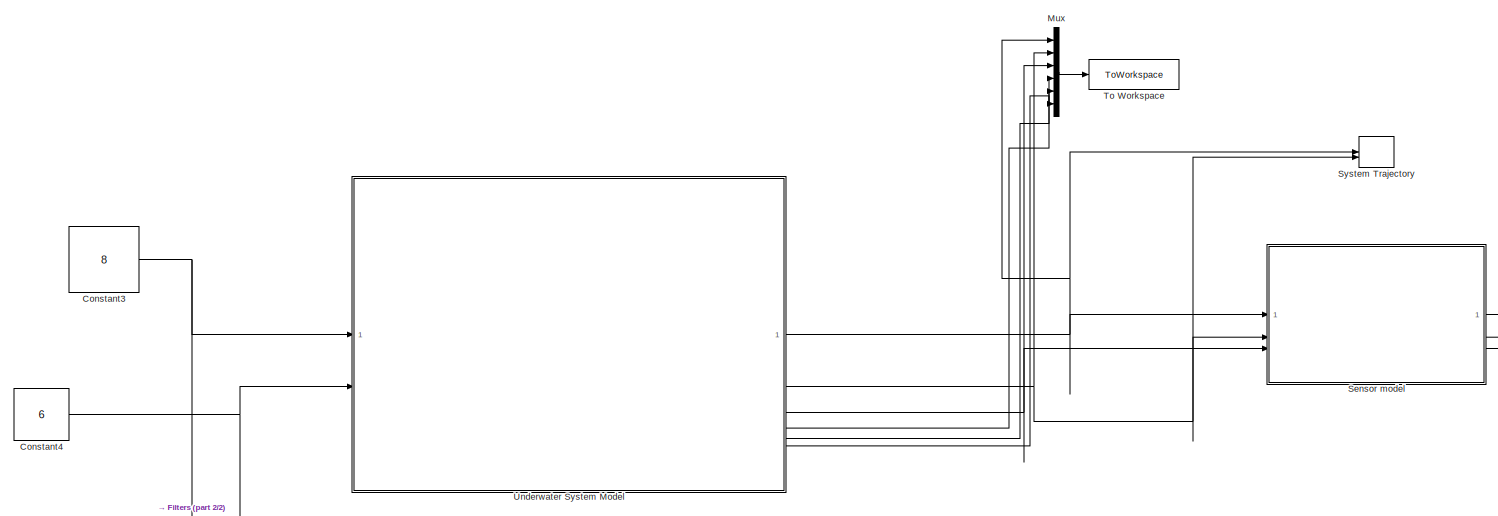
[diagram: root canvas - part 1/2, full width, top band]
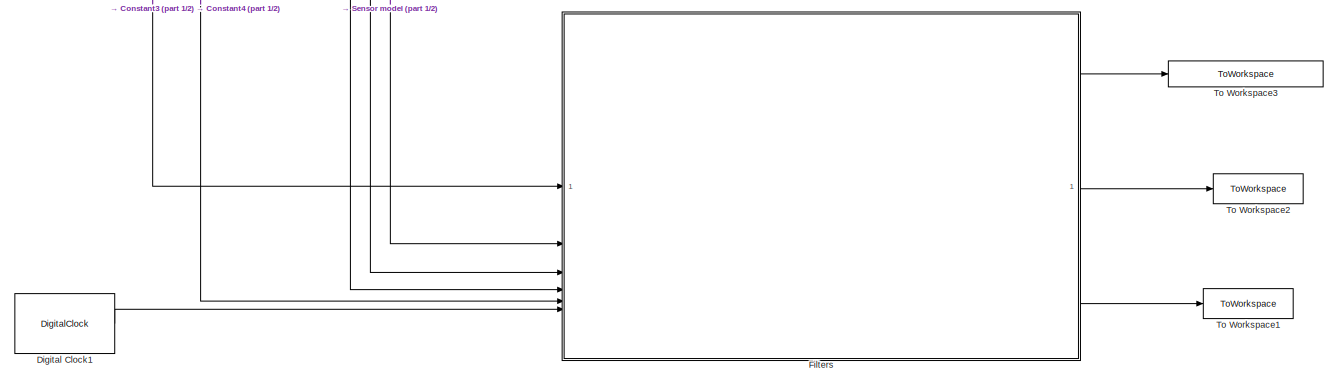
[diagram: root canvas - part 2/2, full width, bottom band]
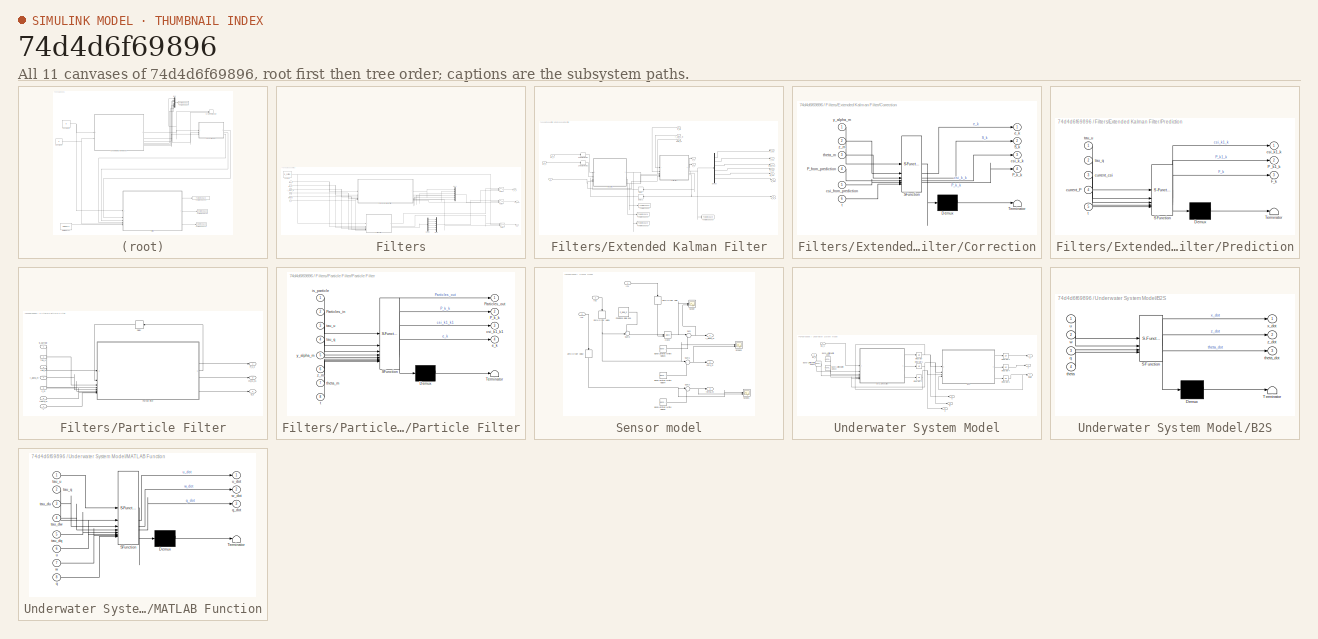
[diagram: thumbnail index - all 11 canvases of the model, root first then tree order]
MODEL slx_74d4d6f69896
KIND model
CONFIG AbsTol = auto
CONFIG EnableMultiTasking = off
CONFIG FixedStep = auto
CONFIG MaxStep = auto
CONFIG MinStep = auto
CONFIG RelTol = 1e-3
CONFIG SampleTimeConstraint = Unconstrained
CONFIG SolverName = VariableStepAuto
CONFIG StartTime = 0.0
CONFIG StopTime = 60
BLOCK [Constant] Constant3
  Value = 8
BLOCK [Constant] Constant4
  Value = 6
BLOCK [DigitalClock] Digital Clock1
  SampleTime = 0.1
BLOCK [SubSystem] Filters
BLOCK [Constant] Filters/Constant
  Value = is_particle
BLOCK [Demux] Filters/Demux
  Outputs = 6
BLOCK [SubSystem] Filters/Extended Kalman Filter
BLOCK [SubSystem] Filters/Extended Kalman Filter/Correction
  ErrorFcn = Stateflow.Translate.translate
  LibrarySourceBlock = simulink/User-Defined\nFunctions/MATLAB Function
  PermitHierarchicalResolution = ExplicitOnly
  SFBlockType = MATLAB Function
  TreatAsAtomicUnit = on
BLOCK [Demux] Filters/Extended Kalman Filter/Correction/ Demux 
  Outputs = 1
BLOCK [S-Function] Filters/Extended Kalman Filter/Correction/ SFunction 
  EnableBusSupport = on
  FunctionName = sf_sfun
  Parameters = R,z_boa_2
  PortCounts = [6 5]
  SFcnIsStateOwnerBlock = off
  SFunctionDeploymentMode = off
  Tag = Stateflow S-Function 4
BLOCK [Terminator] Filters/Extended Kalman Filter/Correction/ Terminator 
BLOCK [Inport] Filters/Extended Kalman Filter/Correction/P_from_prediction
  Port = 4
BLOCK [Outport] Filters/Extended Kalman Filter/Correction/P_k_k
  Port = 4
BLOCK [Outport] Filters/Extended Kalman Filter/Correction/S_k
  Port = 2
BLOCK [Inport] Filters/Extended Kalman Filter/Correction/csi_from_prediction
  Port = 5
BLOCK [Outport] Filters/Extended Kalman Filter/Correction/csi_k_k
  Port = 3
BLOCK [Outport] Filters/Extended Kalman Filter/Correction/e_k
BLOCK [Inport] Filters/Extended Kalman Filter/Correction/t
  Port = 6
BLOCK [Inport] Filters/Extended Kalman Filter/Correction/theta_m
  Port = 3
BLOCK [Inport] Filters/Extended Kalman Filter/Correction/y_alpha_m
BLOCK [Inport] Filters/Extended Kalman Filter/Correction/z_m
  Port = 2
BLOCK [Delay] Filters/Extended Kalman Filter/Delay
  DelayLength = 1
  InitialCondition = 0
  InputPortMap = u0
  SampleTime = dt
BLOCK [Delay] Filters/Extended Kalman Filter/Delay1
  DelayLength = 1
  InitialCondition = 0
  InputPortMap = u0
  SampleTime = dt
BLOCK [Demux] Filters/Extended Kalman Filter/Demux
  Outputs = 6
BLOCK [Outport] Filters/Extended Kalman Filter/P_k_k
  Port = 9
BLOCK [SubSystem] Filters/Extended Kalman Filter/Prediction
  ErrorFcn = Stateflow.Translate.translate
  LibrarySourceBlock = simulink/User-Defined\nFunctions/MATLAB Function
  PermitHierarchicalResolution = ExplicitOnly
  SFBlockType = MATLAB Function
  TreatAsAtomicUnit = on
BLOCK [Demux] Filters/Extended Kalman Filter/Prediction/ Demux 
  Outputs = 1
BLOCK [S-Function] Filters/Extended Kalman Filter/Prediction/ SFunction 
  EnableBusSupport = on
  FunctionName = sf_sfun
  Parameters = P_00,Q,S,csi_0,dt
  PortCounts = [5 4]
  SFcnIsStateOwnerBlock = off
  SFunctionDeploymentMode = off
  Tag = Stateflow S-Function 3
BLOCK [Terminator] Filters/Extended Kalman Filter/Prediction/ Terminator 
BLOCK [Outport] Filters/Extended Kalman Filter/Prediction/F_k
  Port = 3
BLOCK [Outport] Filters/Extended Kalman Filter/Prediction/P_k1_k
  Port = 2
BLOCK [Outport] Filters/Extended Kalman Filter/Prediction/csi_k1_k
BLOCK [Inport] Filters/Extended Kalman Filter/Prediction/current_P
  Port = 4
BLOCK [Inport] Filters/Extended Kalman Filter/Prediction/current_csi
  Port = 3
BLOCK [Inport] Filters/Extended Kalman Filter/Prediction/t
  Port = 5
BLOCK [Inport] Filters/Extended Kalman Filter/Prediction/tau_q
  Port = 2
BLOCK [Inport] Filters/Extended Kalman Filter/Prediction/tau_u
BLOCK [Outport] Filters/Extended Kalman Filter/S_k
  Port = 8
BLOCK [ToWorkspace] Filters/Extended Kalman Filter/To Workspace
  FixptAsFi = on
  MaxDataPoints = inf
  SampleTime = dt
  VariableName = P_k1_k
BLOCK [ToWorkspace] Filters/Extended Kalman Filter/To Workspace1
  FixptAsFi = on
  MaxDataPoints = inf
  SampleTime = dt
  VariableName = F_k
BLOCK [ToWorkspace] Filters/Extended Kalman Filter/To Workspace2
  FixptAsFi = on
  MaxDataPoints = inf
  SampleTime = dt
  VariableName = csi_k1_k
BLOCK [ToWorkspace] Filters/Extended Kalman Filter/To Workspace3
  FixptAsFi = on
  MaxDataPoints = inf
  SampleTime = dt
  VariableName = csi_k_k
BLOCK [ZeroOrderHold] Filters/Extended Kalman Filter/Zero-Order Hold1
  SampleTime = dt
BLOCK [ZeroOrderHold] Filters/Extended Kalman Filter/Zero-Order Hold2
  SampleTime = dt
BLOCK [Outport] Filters/Extended Kalman Filter/e_k
  Port = 7
BLOCK [Outport] Filters/Extended Kalman Filter/q_hat
  Port = 6
BLOCK [Inport] Filters/Extended Kalman Filter/t
  Port = 6
BLOCK [Inport] Filters/Extended Kalman Filter/tau_q
  Port = 2
BLOCK [Inport] Filters/Extended Kalman Filter/tau_u
BLOCK [Outport] Filters/Extended Kalman Filter/theta_hat
  Port = 3
BLOCK [Inport] Filters/Extended Kalman Filter/theta_m
  NameLocation = top
  Port = 5
BLOCK [Outport] Filters/Extended Kalman Filter/u_hat
  Port = 4
BLOCK [Outport] Filters/Extended Kalman Filter/w_hat
  Port = 5
BLOCK [Outport] Filters/Extended Kalman Filter/x_hat
BLOCK [Inport] Filters/Extended Kalman Filter/y_alpha_m
  NameLocation = top
  Port = 3
BLOCK [Outport] Filters/Extended Kalman Filter/z_hat
  Port = 2
BLOCK [Inport] Filters/Extended Kalman Filter/z_m
  Port = 4
BLOCK [Mux] Filters/Mux1
  DisplayOption = bar
  Inputs = 6
BLOCK [Mux] Filters/Mux2
  DisplayOption = bar
  Inputs = 6
BLOCK [Outport] Filters/P_k_k
  Port = 3
BLOCK [SubSystem] Filters/Particle Filter
BLOCK [Delay] Filters/Particle Filter/Delay
  DelayLength = 1
  InitialCondition = 0
  InputPortMap = u0
  NameLocation = top
  SampleTime = dt
BLOCK [Outport] Filters/Particle Filter/P_k_k
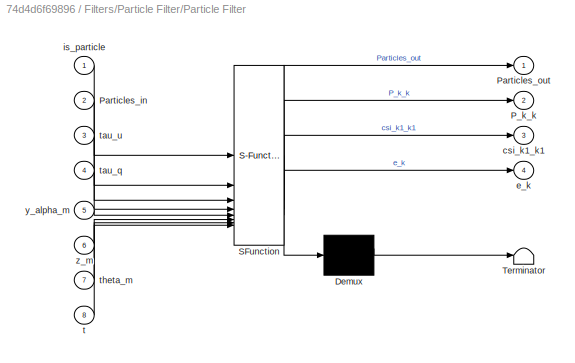
BLOCK [SubSystem] Filters/Particle Filter/Particle Filter
  ErrorFcn = Stateflow.Translate.translate
  LibrarySourceBlock = simulink/User-Defined\nFunctions/MATLAB Function
  PermitHierarchicalResolution = ExplicitOnly
  SFBlockType = MATLAB Function
  TreatAsAtomicUnit = on
BLOCK [Demux] Filters/Particle Filter/Particle Filter/ Demux 
  Outputs = 1
BLOCK [S-Function] Filters/Particle Filter/Particle Filter/ SFunction 
  EnableBusSupport = on
  FunctionName = sf_sfun
  Parameters = Q,R,S,csi_0,dt,z_boa_2
  PortCounts = [8 5]
  SFcnIsStateOwnerBlock = off
  SFunctionDeploymentMode = off
  Tag = Stateflow S-Function 5
BLOCK [Terminator] Filters/Particle Filter/Particle Filter/ Terminator 
BLOCK [Outport] Filters/Particle Filter/Particle Filter/P_k_k
  Port = 2
BLOCK [Inport] Filters/Particle Filter/Particle Filter/Particles_in
  Port = 2
BLOCK [Outport] Filters/Particle Filter/Particle Filter/Particles_out
BLOCK [Outport] Filters/Particle Filter/Particle Filter/csi_k1_k1
  Port = 3
BLOCK [Outport] Filters/Particle Filter/Particle Filter/e_k
  Port = 4
BLOCK [Inport] Filters/Particle Filter/Particle Filter/is_particle
BLOCK [Inport] Filters/Particle Filter/Particle Filter/t
  Port = 8
BLOCK [Inport] Filters/Particle Filter/Particle Filter/tau_q
  Port = 4
BLOCK [Inport] Filters/Particle Filter/Particle Filter/tau_u
  Port = 3
BLOCK [Inport] Filters/Particle Filter/Particle Filter/theta_m
  Port = 7
BLOCK [Inport] Filters/Particle Filter/Particle Filter/y_alpha_m
  Port = 5
BLOCK [Inport] Filters/Particle Filter/Particle Filter/z_m
  Port = 6
BLOCK [Outport] Filters/Particle Filter/csi_k1_k1
  Port = 3
BLOCK [Outport] Filters/Particle Filter/e_k
  Port = 2
BLOCK [Inport] Filters/Particle Filter/is_particle
BLOCK [Inport] Filters/Particle Filter/t
  Port = 7
BLOCK [Inport] Filters/Particle Filter/tau_q
  Port = 3
BLOCK [Inport] Filters/Particle Filter/tau_u
  Port = 2
BLOCK [Inport] Filters/Particle Filter/theta_m
  Port = 6
BLOCK [Inport] Filters/Particle Filter/y_alpha_m
  Port = 4
BLOCK [Inport] Filters/Particle Filter/z_m
  Port = 5
BLOCK [Switch] Filters/Switch
  Criteria = u2 > Threshold
  InputSameDT = off
  SaturateOnIntegerOverflow = off
BLOCK [Switch] Filters/Switch1
  Criteria = u2 > Threshold
  InputSameDT = off
  SaturateOnIntegerOverflow = off
BLOCK [Switch] Filters/Switch2
  Criteria = u2 > Threshold
  InputSameDT = off
  SaturateOnIntegerOverflow = off
BLOCK [Outport] Filters/csi_hat
BLOCK [Outport] Filters/e_k
  Port = 2
BLOCK [Inport] Filters/t
  Port = 6
BLOCK [Inport] Filters/tau_q
  Port = 5
BLOCK [Inport] Filters/tau_u
BLOCK [Inport] Filters/theta_m
  Port = 4
BLOCK [Inport] Filters/y_alpha_m
  Port = 2
BLOCK [Inport] Filters/z_m
  Port = 3
BLOCK [Mux] Mux
  DisplayOption = bar
  Inputs = 6
BLOCK [SubSystem] Sensor model
BLOCK [Trigonometry] Sensor model/Atan2
  Operator = atan2
BLOCK [Reference] Sensor model/Band-Limited White Noise3  REF=simulink/Sources/Band-Limited
White Noise
  SourceBlock = simulink/Sources/Band-Limited\nWhite Noise
  SourceType = Band-Limited White Noise.
BLOCK [Reference] Sensor model/Band-Limited White Noise4  REF=simulink/Sources/Band-Limited
White Noise
  SourceBlock = simulink/Sources/Band-Limited\nWhite Noise
  SourceType = Band-Limited White Noise.
BLOCK [Reference] Sensor model/Band-Limited White Noise5  REF=simulink/Sources/Band-Limited
White Noise
  SourceBlock = simulink/Sources/Band-Limited\nWhite Noise
  SourceType = Band-Limited White Noise.
BLOCK [Inport] Sensor model/In1
BLOCK [Inport] Sensor model/In2
  Port = 2
BLOCK [Inport] Sensor model/In3
  Port = 3
BLOCK [Constant] Sensor model/Posizione della boa
  Value = z_boa_2
BLOCK [Scope] Sensor model/Scope
  Floating = off
  NumInputPorts = 2
  ScopeSpecificationString = Simulink.scopes.TimeScopeBlockCfg('CurrentConfiguration', extmgr.ConfigurationSet(extmgr.Configuration('Core','General UI',true),extmgr.Configuration('Core','Source UI',true),extmgr.Configuration('Sources','WiredSimulink',true),extmgr.Configuration('Visuals','Time Domain',true,'SerializedDisplays',{struct('MinYLimReal','-0.14385','MaxYLimReal','0.15456','YLabelReal','','MinYLimMag','0.00000','MaxY...<+1388ch>
BLOCK [Scope] Sensor model/Scope1
  Floating = off
  NumInputPorts = 2
  ScopeSpecificationString = Simulink.scopes.TimeScopeBlockCfg('CurrentConfiguration', extmgr.ConfigurationSet(extmgr.Configuration('Core','General UI',true),extmgr.Configuration('Core','Source UI',true),extmgr.Configuration('Sources','WiredSimulink',true,'DataLoggingVariableName','ScopeData1'),extmgr.Configuration('Visuals','Time Domain',true,'SerializedDisplays',{struct('MinYLimReal','-6.48792','MaxYLimReal','2.94835','YLab...<+1415ch>
BLOCK [Scope] Sensor model/Scope3
  Floating = off
  NumInputPorts = 2
  ScopeSpecificationString = Simulink.scopes.TimeScopeBlockCfg('CurrentConfiguration', extmgr.ConfigurationSet(extmgr.Configuration('Core','General UI',true),extmgr.Configuration('Core','Source UI',true),extmgr.Configuration('Sources','WiredSimulink',true,'DataLoggingVariableName','ScopeData3'),extmgr.Configuration('Visuals','Time Domain',true,'SerializedDisplays',{struct('MinYLimReal','-50.79774','MaxYLimReal','7.54544','YLa...<+1434ch>
BLOCK [Sum] Sensor model/Sum
  Inputs = |++
BLOCK [Sum] Sensor model/Sum1
  Inputs = |++
BLOCK [Sum] Sensor model/Sum2
  Inputs = |++
BLOCK [Sum] Sensor model/Sum3
  Inputs = +-|
BLOCK [ZeroOrderHold] Sensor model/Zero-Order Hold
  NameLocation = left
  SampleTime = dt
BLOCK [ZeroOrderHold] Sensor model/Zero-Order Hold1
  NameLocation = left
  SampleTime = dt
BLOCK [ZeroOrderHold] Sensor model/Zero-Order Hold2
  NameLocation = left
  SampleTime = dt
BLOCK [Outport] Sensor model/tetha_m
  Port = 3
BLOCK [Outport] Sensor model/y_alpha_m
BLOCK [Outport] Sensor model/zeta_m
  Port = 2
BLOCK [Record] System Trajectory
  CompatibilityTag = XY
  FileSettingsInternal = {"entries":[{"content":{"excelSettings":{"content":{},"type":"Streamout.ExcelSettings"}},"type":"Streamout.FileSettingStorage","uuid":"5a9cd2f8-3f1b-4377-9d18-0cf4235dc122"}],"packageUris":["http://schema.mathworks.com/mf0/streamout_blocks/R2020a"],"version":"1.0"}
  Layout = [1 1]
  SignalsInternal = {"entries":[{"content":{"signals":[{"content":{"blockPath":["BodyDynamics/System Trajectory"],"channel":[],"dimensions":[1],"domain":"BodyDynamics/System Trajectory","lineColor":"#ff6929","plots":[],"port":1,"sid":[""],"signalID":475,"signalName":"Underwater System Model:1"},"type":"RecordBlkView.Signal","uuid":"2e985c3f-a8fe-4c9c-bedf-405b71b3ce1e"},{"content":{"blockPath":["BodyDynamics/System T...<+447ch>
  VisualizationBindings = {"xyplotplugin":{"info":[{"series":[],"subplotID":1}]}}
BLOCK [ToWorkspace] To Workspace
  FixptAsFi = on
  MaxDataPoints = inf
  SampleTime = dt
  VariableName = system_states
BLOCK [ToWorkspace] To Workspace1
  FixptAsFi = on
  MaxDataPoints = inf
  SampleTime = dt
  VariableName = P_k_k
BLOCK [ToWorkspace] To Workspace2
  FixptAsFi = on
  MaxDataPoints = inf
  SampleTime = dt
  VariableName = e_k
BLOCK [ToWorkspace] To Workspace3
  FixptAsFi = on
  MaxDataPoints = inf
  SampleTime = dt
  VariableName = esteemated_system_states
BLOCK [SubSystem] Underwater System Model
BLOCK [SubSystem] Underwater System Model/B2S
  ErrorFcn = Stateflow.Translate.translate
  PermitHierarchicalResolution = ExplicitOnly
  SFBlockType = MATLAB Function
  TreatAsAtomicUnit = on
BLOCK [Demux] Underwater System Model/B2S/ Demux 
  Outputs = 1
BLOCK [S-Function] Underwater System Model/B2S/ SFunction 
  EnableBusSupport = on
  FunctionName = sf_sfun
  PortCounts = [4 4]
  SFcnIsStateOwnerBlock = off
  SFunctionDeploymentMode = off
  Tag = Stateflow S-Function 1
BLOCK [Terminator] Underwater System Model/B2S/ Terminator 
BLOCK [Inport] Underwater System Model/B2S/q
  Port = 3
BLOCK [Inport] Underwater System Model/B2S/theta
  Port = 4
BLOCK [Outport] Underwater System Model/B2S/theta_dot
  Port = 3
BLOCK [Inport] Underwater System Model/B2S/u
BLOCK [Inport] Underwater System Model/B2S/w
  Port = 2
BLOCK [Outport] Underwater System Model/B2S/x_dot
BLOCK [Outport] Underwater System Model/B2S/z_dot
  Port = 2
BLOCK [Reference] Underwater System Model/Band-Limited White Noise  REF=simulink/Sources/Band-Limited
White Noise
  SourceBlock = simulink/Sources/Band-Limited\nWhite Noise
  SourceType = Band-Limited White Noise.
BLOCK [Reference] Underwater System Model/Band-Limited White Noise1  REF=simulink/Sources/Band-Limited
White Noise
  SourceBlock = simulink/Sources/Band-Limited\nWhite Noise
  SourceType = Band-Limited White Noise.
BLOCK [Reference] Underwater System Model/Band-Limited White Noise2  REF=simulink/Sources/Band-Limited
White Noise
  SourceBlock = simulink/Sources/Band-Limited\nWhite Noise
  SourceType = Band-Limited White Noise.
BLOCK [Integrator] Underwater System Model/Integrator
  InitialCondition = u_0
BLOCK [Integrator] Underwater System Model/Integrator1
  InitialCondition = w_0
BLOCK [Integrator] Underwater System Model/Integrator2
  InitialCondition = q_0
BLOCK [Integrator] Underwater System Model/Integrator3
  InitialCondition = x_0
BLOCK [Integrator] Underwater System Model/Integrator4
  InitialCondition = z_0
BLOCK [Integrator] Underwater System Model/Integrator5
  InitialCondition = theta_0
  WrappedStateLowerValue = 0
  WrappedStateUpperValue = 2*pi
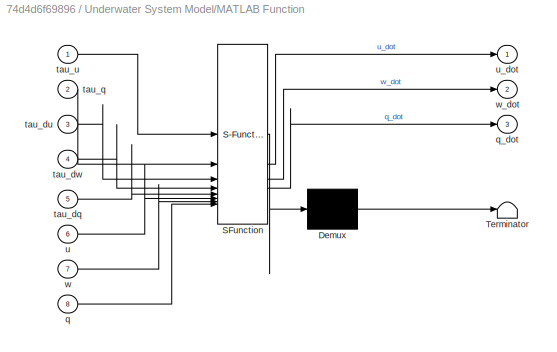
BLOCK [SubSystem] Underwater System Model/MATLAB Function
  ErrorFcn = Stateflow.Translate.translate
  PermitHierarchicalResolution = ExplicitOnly
  SFBlockType = MATLAB Function
  TreatAsAtomicUnit = on
BLOCK [Demux] Underwater System Model/MATLAB Function/ Demux 
  Outputs = 1
BLOCK [S-Function] Underwater System Model/MATLAB Function/ SFunction 
  EnableBusSupport = on
  FunctionName = sf_sfun
  Parameters = S
  PortCounts = [8 4]
  SFcnIsStateOwnerBlock = off
  SFunctionDeploymentMode = off
  Tag = Stateflow S-Function 2
BLOCK [Terminator] Underwater System Model/MATLAB Function/ Terminator 
BLOCK [Inport] Underwater System Model/MATLAB Function/q
  Port = 8
BLOCK [Outport] Underwater System Model/MATLAB Function/q_dot
  Port = 3
BLOCK [Inport] Underwater System Model/MATLAB Function/tau_dq
  Port = 5
BLOCK [Inport] Underwater System Model/MATLAB Function/tau_du
  Port = 3
BLOCK [Inport] Underwater System Model/MATLAB Function/tau_dw
  Port = 4
BLOCK [Inport] Underwater System Model/MATLAB Function/tau_q
  Port = 2
BLOCK [Inport] Underwater System Model/MATLAB Function/tau_u
BLOCK [Inport] Underwater System Model/MATLAB Function/u
  Port = 6
BLOCK [Outport] Underwater System Model/MATLAB Function/u_dot
BLOCK [Inport] Underwater System Model/MATLAB Function/w
  Port = 7
BLOCK [Outport] Underwater System Model/MATLAB Function/w_dot
  Port = 2
BLOCK [Outport] Underwater System Model/q
  Port = 6
BLOCK [Inport] Underwater System Model/tau_q
  Port = 2
BLOCK [Inport] Underwater System Model/tau_u
BLOCK [Outport] Underwater System Model/theta
  Port = 3
BLOCK [Outport] Underwater System Model/u
  Port = 4
BLOCK [Outport] Underwater System Model/w
  Port = 5
BLOCK [Outport] Underwater System Model/x
BLOCK [Outport] Underwater System Model/z
  Port = 2
NET Constant3:1 -> Filters:1, Underwater System Model:1
NET Constant4:1 -> Filters:5, Underwater System Model:2
LINE Digital Clock1:1 -> Filters:6
NET Filters/Constant:1 -> Filters/Particle Filter:1, Filters/Switch1:2, Filters/Switch2:2, Filters/Switch:2
LINE Filters/Demux:1 -> Filters/Mux2:1
LINE Filters/Demux:2 -> Filters/Mux2:2
LINE Filters/Demux:3 -> Filters/Mux2:3
LINE Filters/Demux:4 -> Filters/Mux2:4
LINE Filters/Demux:5 -> Filters/Mux2:5
LINE Filters/Demux:6 -> Filters/Mux2:6
LINE Filters/Extended Kalman Filter/Correction:1 -> Filters/Extended Kalman Filter/e_k:1
LINE Filters/Extended Kalman Filter/Correction:2 -> Filters/Extended Kalman Filter/S_k:1
NET Filters/Extended Kalman Filter/Correction:3 -> Filters/Extended Kalman Filter/Delay:1, Filters/Extended Kalman Filter/Demux:1, Filters/Extended Kalman Filter/To Workspace3:1
NET Filters/Extended Kalman Filter/Correction:4 -> Filters/Extended Kalman Filter/Delay1:1, Filters/Extended Kalman Filter/P_k_k:1
LINE Filters/Extended Kalman Filter/Delay1:1 -> Filters/Extended Kalman Filter/Prediction:4
LINE Filters/Extended Kalman Filter/Delay:1 -> Filters/Extended Kalman Filter/Prediction:3
LINE Filters/Extended Kalman Filter/Demux:1 -> Filters/Extended Kalman Filter/x_hat:1
LINE Filters/Extended Kalman Filter/Demux:2 -> Filters/Extended Kalman Filter/z_hat:1
LINE Filters/Extended Kalman Filter/Demux:3 -> Filters/Extended Kalman Filter/theta_hat:1
LINE Filters/Extended Kalman Filter/Demux:4 -> Filters/Extended Kalman Filter/u_hat:1
LINE Filters/Extended Kalman Filter/Demux:5 -> Filters/Extended Kalman Filter/w_hat:1
LINE Filters/Extended Kalman Filter/Demux:6 -> Filters/Extended Kalman Filter/q_hat:1
NET Filters/Extended Kalman Filter/Prediction:1 -> Filters/Extended Kalman Filter/Correction:5, Filters/Extended Kalman Filter/To Workspace2:1
NET Filters/Extended Kalman Filter/Prediction:2 -> Filters/Extended Kalman Filter/Correction:4, Filters/Extended Kalman Filter/To Workspace:1
LINE Filters/Extended Kalman Filter/Prediction:3 -> Filters/Extended Kalman Filter/To Workspace1:1
LINE Filters/Extended Kalman Filter/Zero-Order Hold1:1 -> Filters/Extended Kalman Filter/Prediction:1
LINE Filters/Extended Kalman Filter/Zero-Order Hold2:1 -> Filters/Extended Kalman Filter/Prediction:2
NET Filters/Extended Kalman Filter/t:1 -> Filters/Extended Kalman Filter/Correction:6, Filters/Extended Kalman Filter/Prediction:5
LINE Filters/Extended Kalman Filter/tau_q:1 -> Filters/Extended Kalman Filter/Zero-Order Hold2:1
LINE Filters/Extended Kalman Filter/tau_u:1 -> Filters/Extended Kalman Filter/Zero-Order Hold1:1
LINE Filters/Extended Kalman Filter/theta_m:1 -> Filters/Extended Kalman Filter/Correction:3
LINE Filters/Extended Kalman Filter/y_alpha_m:1 -> Filters/Extended Kalman Filter/Correction:1
LINE Filters/Extended Kalman Filter/z_m:1 -> Filters/Extended Kalman Filter/Correction:2
LINE Filters/Extended Kalman Filter:1 -> Filters/Mux1:1
LINE Filters/Extended Kalman Filter:2 -> Filters/Mux1:2
LINE Filters/Extended Kalman Filter:3 -> Filters/Mux1:3
LINE Filters/Extended Kalman Filter:4 -> Filters/Mux1:4
LINE Filters/Extended Kalman Filter:5 -> Filters/Mux1:5
LINE Filters/Extended Kalman Filter:6 -> Filters/Mux1:6
LINE Filters/Extended Kalman Filter:7 -> Filters/Switch1:3
LINE Filters/Extended Kalman Filter:9 -> Filters/Switch2:3
LINE Filters/Mux1:1 -> Filters/Switch:3
LINE Filters/Mux2:1 -> Filters/Switch:1
LINE Filters/Particle Filter/Delay:1 -> Filters/Particle Filter/Particle Filter:2
LINE Filters/Particle Filter/Particle Filter:1 -> Filters/Particle Filter/Delay:1
LINE Filters/Particle Filter/Particle Filter:2 -> Filters/Particle Filter/P_k_k:1
LINE Filters/Particle Filter/Particle Filter:3 -> Filters/Particle Filter/csi_k1_k1:1
LINE Filters/Particle Filter/Particle Filter:4 -> Filters/Particle Filter/e_k:1
LINE Filters/Particle Filter/is_particle:1 -> Filters/Particle Filter/Particle Filter:1
LINE Filters/Particle Filter/t:1 -> Filters/Particle Filter/Particle Filter:8
LINE Filters/Particle Filter/tau_q:1 -> Filters/Particle Filter/Particle Filter:4
LINE Filters/Particle Filter/tau_u:1 -> Filters/Particle Filter/Particle Filter:3
LINE Filters/Particle Filter/theta_m:1 -> Filters/Particle Filter/Particle Filter:7
LINE Filters/Particle Filter/y_alpha_m:1 -> Filters/Particle Filter/Particle Filter:5
LINE Filters/Particle Filter/z_m:1 -> Filters/Particle Filter/Particle Filter:6
LINE Filters/Particle Filter:1 -> Filters/Switch2:1
LINE Filters/Particle Filter:2 -> Filters/Switch1:1
LINE Filters/Particle Filter:3 -> Filters/Demux:1
LINE Filters/Switch1:1 -> Filters/e_k:1
LINE Filters/Switch2:1 -> Filters/P_k_k:1
LINE Filters/Switch:1 -> Filters/csi_hat:1
NET Filters/t:1 -> Filters/Extended Kalman Filter:6, Filters/Particle Filter:7
NET Filters/tau_q:1 -> Filters/Extended Kalman Filter:2, Filters/Particle Filter:3
NET Filters/tau_u:1 -> Filters/Extended Kalman Filter:1, Filters/Particle Filter:2
NET Filters/theta_m:1 -> Filters/Extended Kalman Filter:5, Filters/Particle Filter:6
NET Filters/y_alpha_m:1 -> Filters/Extended Kalman Filter:3, Filters/Particle Filter:4
NET Filters/z_m:1 -> Filters/Extended Kalman Filter:4, Filters/Particle Filter:5
LINE Filters:1 -> To Workspace3:1
LINE Filters:2 -> To Workspace2:1
LINE Filters:3 -> To Workspace1:1
LINE Mux:1 -> To Workspace:1
NET Sensor model/Atan2:1 -> Sensor model/Scope:1, Sensor model/Sum:1
LINE Sensor model/Band-Limited White Noise3:1 -> Sensor model/Sum:2
LINE Sensor model/Band-Limited White Noise4:1 -> Sensor model/Sum1:2
LINE Sensor model/Band-Limited White Noise5:1 -> Sensor model/Sum2:2
LINE Sensor model/In1:1 -> Sensor model/Zero-Order Hold:1
LINE Sensor model/In2:1 -> Sensor model/Zero-Order Hold1:1
LINE Sensor model/In3:1 -> Sensor model/Zero-Order Hold2:1
LINE Sensor model/Posizione della boa:1 -> Sensor model/Sum3:1
NET Sensor model/Sum1:1 -> Sensor model/Scope3:2, Sensor model/zeta_m:1
NET Sensor model/Sum2:1 -> Sensor model/Scope1:2, Sensor model/tetha_m:1
LINE Sensor model/Sum3:1 -> Sensor model/Atan2:1
NET Sensor model/Sum:1 -> Sensor model/Scope:2, Sensor model/y_alpha_m:1
NET Sensor model/Zero-Order Hold1:1 -> Sensor model/Scope3:1, Sensor model/Sum1:1, Sensor model/Sum3:2
NET Sensor model/Zero-Order Hold2:1 -> Sensor model/Scope1:1, Sensor model/Sum2:1
LINE Sensor model/Zero-Order Hold:1 -> Sensor model/Atan2:2
LINE Sensor model:1 -> Filters:2
LINE Sensor model:2 -> Filters:3
LINE Sensor model:3 -> Filters:4
LINE Underwater System Model/B2S:1 -> Underwater System Model/Integrator3:1
LINE Underwater System Model/B2S:2 -> Underwater System Model/Integrator4:1
LINE Underwater System Model/B2S:3 -> Underwater System Model/Integrator5:1
LINE Underwater System Model/Band-Limited White Noise1:1 -> Underwater System Model/MATLAB Function:4
LINE Underwater System Model/Band-Limited White Noise2:1 -> Underwater System Model/MATLAB Function:5
LINE Underwater System Model/Band-Limited White Noise:1 -> Underwater System Model/MATLAB Function:3
NET Underwater System Model/Integrator1:1 -> Underwater System Model/B2S:2, Underwater System Model/MATLAB Function:7, Underwater System Model/w:1
NET Underwater System Model/Integrator2:1 -> Underwater System Model/B2S:3, Underwater System Model/MATLAB Function:8, Underwater System Model/q:1
LINE Underwater System Model/Integrator3:1 -> Underwater System Model/x:1
LINE Underwater System Model/Integrator4:1 -> Underwater System Model/z:1
NET Underwater System Model/Integrator5:1 -> Underwater System Model/B2S:4, Underwater System Model/theta:1
NET Underwater System Model/Integrator:1 -> Underwater System Model/B2S:1, Underwater System Model/MATLAB Function:6, Underwater System Model/u:1
LINE Underwater System Model/MATLAB Function:1 -> Underwater System Model/Integrator:1
LINE Underwater System Model/MATLAB Function:2 -> Underwater System Model/Integrator1:1
LINE Underwater System Model/MATLAB Function:3 -> Underwater System Model/Integrator2:1
LINE Underwater System Model/tau_q:1 -> Underwater System Model/MATLAB Function:2
LINE Underwater System Model/tau_u:1 -> Underwater System Model/MATLAB Function:1
NET Underwater System Model:1 -> Mux:1, Sensor model:1, System Trajectory:1
NET Underwater System Model:2 -> Mux:2, Sensor model:2, System Trajectory:2
NET Underwater System Model:3 -> Mux:3, Sensor model:3
LINE Underwater System Model:4 -> Mux:4
LINE Underwater System Model:5 -> Mux:5
LINE Underwater System Model:6 -> Mux:6
note: NET lines group one-source signal fan-out (src -> all destinations, sorted); 1:1 wires keep LINE
CHART Filters/Particle Filter/Particle Filter states=1 transitions=1
  STATE_LABEL 'eML_blk_kernel()'
  STATE_LABEL 'SCRIPT:\nfunction [Particles_out, P_k_k, csi_k1_k1, e_k] = Particle_Filter(is_particle, Particles_in, tau_u, tau_q, y_alpha_m, z_m, theta_m, t,z_boa_2, R, Q, S, csi_0, dt)\n      \n    m = S(1);\n    I_y = S(2);\n    Damping_matrix = diag([S(3),S(4),S(5)]);\n    \n    N = 20000;              % Numero di particelle che generiamo \n    \n    if(is_particle)\n        if(t == 0)               % Generazione part...<+3608ch>'
CHART Underwater System Model/B2S states=1 transitions=1
  STATE_LABEL 'eML_blk_kernel()'
  STATE_LABEL "SCRIPT:\nfunction [x_dot, z_dot, theta_dot] = BodyToSpatial(u, w, q, theta)\n    theta = wrapToPi(theta);\n    R = [cos(theta) sin(theta) 0; -sin(theta) cos(theta) 0; 0 0 1];   % matrice di rotazione B2S\n    S_spatial = R*[u w q]';\n    x_dot = S_spatial(1);\n    z_dot = S_spatial(2);\n    theta_dot = S_spatial(3);\nend\n"
CHART Underwater System Model/MATLAB Function states=1 transitions=1
  STATE_LABEL 'eML_blk_kernel()'
  STATE_LABEL 'SCRIPT:\nfunction [u_dot, w_dot, q_dot] = BodyDynamics(tau_u, tau_q, tau_du, tau_dw, tau_dq, u, w, q, S)\n    \n    % Parametri del sistema\n    \n    m = S(1);\n    I_y = S(2);\n    Damping_matrix = diag([S(3),S(4),S(5)]);\n    \n    B=[m 0 0; 0 m 0; 0 0 I_y];          % Matrice di massa\n    C=[Damping_matrix(1,1) 0 m*w;\n       0 Damping_matrix(2,2) -m*u ;\n       -m*w m*u Damping_matrix(3,3)];   % Matrice...<+234ch>'
CHART Filters/Extended Kalman Filter/Prediction states=1 transitions=1
  STATE_LABEL 'eML_blk_kernel()'
  STATE_LABEL 'SCRIPT:\nfunction [csi_k1_k, P_k1_k, F_k] = Prediction(tau_u, tau_q, csi_0, current_csi, current_P, t, P_00, Q, dt, S)\n    \n    % Parametri del sistema\n\n    m = S(1);\n    I_y = S(2);\n    Damping_matrix = diag([S(3),S(4),S(5)]);\n\n    % Inserimento del valore iniziale in t = 0\n\n    if t == 0                          \n        csi_k_k = csi_0 + P_00*randn(6,1);\n        P_k_k = P_00;\n    else \n        c...<+2027ch>'
CHART Filters/Extended Kalman Filter/Correction states=1 transitions=1
  STATE_LABEL 'eML_blk_kernel()'
  STATE_LABEL "SCRIPT:\nfunction [e_k, S_k, csi_k_k, P_k_k] = Correction(y_alpha_m, z_m, theta_m, P_from_prediction, csi_from_prediction, R, z_boa_2,t)\n    \n    % Vettore delle misure in uscita dal sensore\n\n    y_alpha_m = (y_alpha_m);\n    theta_m = (theta_m);\n    y_k=[y_alpha_m, z_m, theta_m]';\n    \n    % Stima predetta\n\n    csi_k_kmeno1 = csi_from_prediction;\n    P_k_kmeno1 = P_from_prediction; \n    \n    x = cs...<+1287ch>"
CHART  states=0 transitions=0
CHART  states=0 transitions=0
CHART  states=0 transitions=0
CHART  states=0 transitions=0
CHART  states=0 transitions=0
